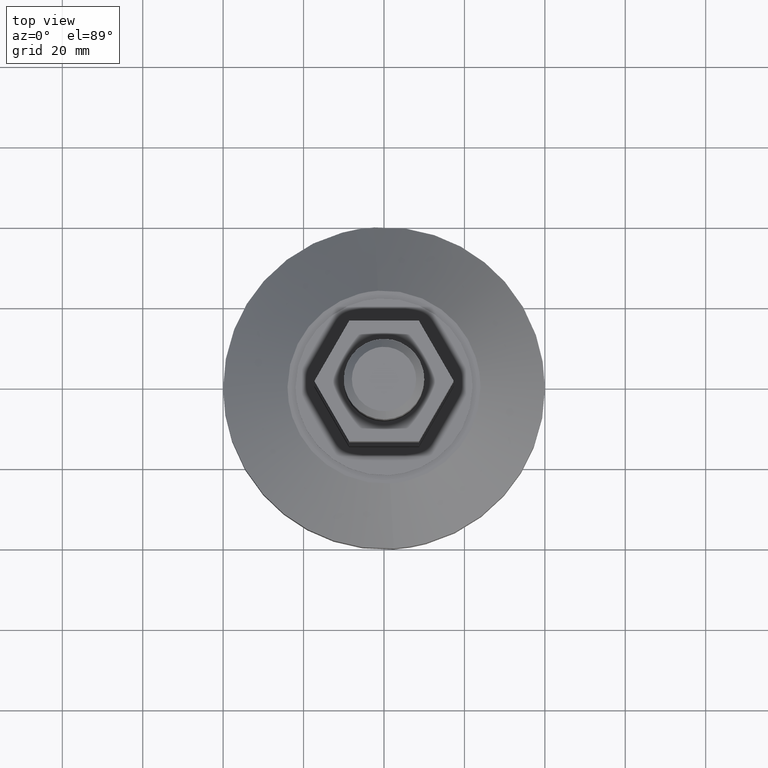
[diagram: clean part render]
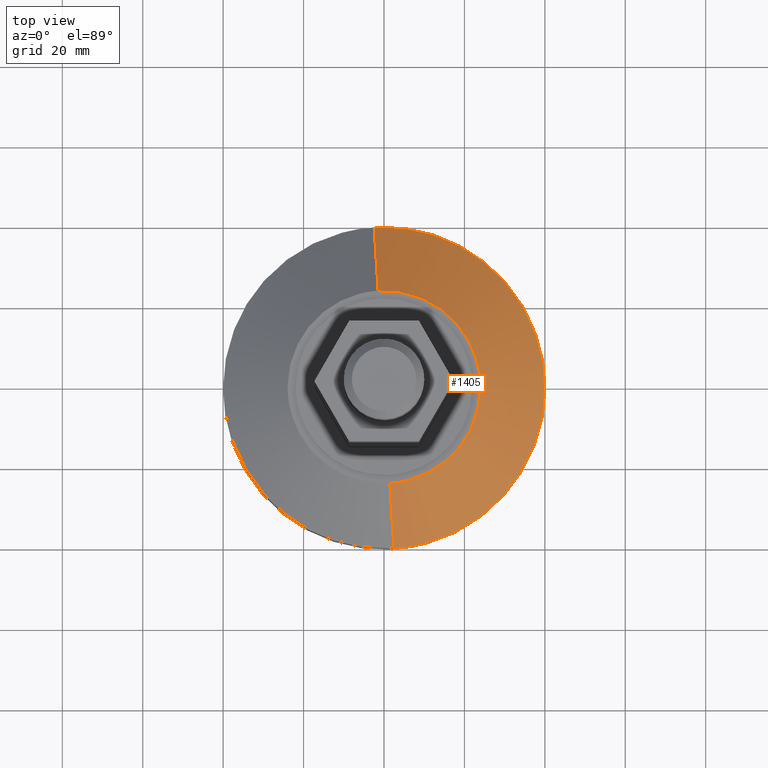
[diagram: same view with one face highlighted and labeled with its STEP entity id]
A machine part, top view. The second image highlights one B-rep face of the part: STEP entity #1405.
In plain terms, the highlighted face is a freeform B-spline surface patch.
Its self-contained STEP definition (entity closure, byte-faithful):
#1235=CARTESIAN_POINT('',(-2.441941581420718,39.925391936876743,14.999999999994490));
#1236=VERTEX_POINT('',#1235);
#1242=CARTESIAN_POINT('',(40.000000000000007,0.0,15.0));
#1243=VERTEX_POINT('',#1242);
#1244=CARTESIAN_POINT('',(-2.441941581420719,39.925391936876736,14.999999999994492));
#1245=CARTESIAN_POINT('',(-1.222110531944214,40.000000000005187,14.999999999994570));
#1246=CARTESIAN_POINT('',(2.524779E-011,40.000000000005109,14.999999999994650));
#1247=CARTESIAN_POINT('',(40.000000000012243,40.000000000002473,14.999999999997407));
#1248=CARTESIAN_POINT('',(40.000000000000007,0.0,15.0));
#1256=(BOUNDED_CURVE()B_SPLINE_CURVE(2,(#1244,#1245,#1246,#1247,#1248),.UNSPECIFIED.,.F.,.U.)B_SPLINE_CURVE_WITH_KNOTS((3,2,3),(0.239332962241742,0.250000000000000,0.500000000000000),.UNSPECIFIED.)CURVE()GEOMETRIC_REPRESENTATION_ITEM()RATIONAL_B_SPLINE_CURVE((0.976072041672716,0.987502787903116,1.0,0.707106781186548,1.0))REPRESENTATION_ITEM(''));
#1257=EDGE_CURVE('',#1236,#1243,#1256,.T.);
#1259=CARTESIAN_POINT('',(2.441941581420751,-39.925391936876743,14.999999999994490));
#1260=VERTEX_POINT('',#1259);
#1261=CARTESIAN_POINT('',(40.000000000000007,0.0,15.0));
#1262=CARTESIAN_POINT('',(39.999999999986997,-37.628242676180889,14.999999999997247));
#1263=CARTESIAN_POINT('',(2.441941581420751,-39.925391936876736,14.999999999994492));
#1271=(BOUNDED_CURVE()B_SPLINE_CURVE(2,(#1261,#1262,#1263),.UNSPECIFIED.,.F.,.U.)B_SPLINE_CURVE_WITH_KNOTS((3,3),(0.500000000000000,0.739332962241742),.UNSPECIFIED.)CURVE()GEOMETRIC_REPRESENTATION_ITEM()RATIONAL_B_SPLINE_CURVE((1.0,0.719603993283431,0.976072041672716))REPRESENTATION_ITEM(''));
#1272=EDGE_CURVE('',#1243,#1260,#1271,.T.);
#1339=CARTESIAN_POINT('',(-1.440745533022588,23.555981242755681,28.324999999999999));
#1340=CARTESIAN_POINT('',(22.115235709733092,24.996726775778285,28.324999999999999));
#1341=CARTESIAN_POINT('',(23.555981242755699,1.440745533022602,28.324999999999999));
#1342=CARTESIAN_POINT('',(24.996726775778299,-22.115235709733078,28.324999999999999));
#1343=CARTESIAN_POINT('',(1.440745533022616,-23.555981242755681,28.324999999999999));
#1344=CARTESIAN_POINT('',(-2.466971482603568,40.334627204227829,14.666874999999999));
#1345=CARTESIAN_POINT('',(37.867655721624253,42.801598686831412,14.666874999999992));
#1346=CARTESIAN_POINT('',(40.334627204227843,2.466971482603583,14.666874999999999));
#1347=CARTESIAN_POINT('',(42.801598686831426,-37.867655721624246,14.666874999999992));
#1348=CARTESIAN_POINT('',(2.466971482603597,-40.334627204227829,14.666874999999999));
#1356=(BOUNDED_SURFACE()B_SPLINE_SURFACE(2,1,((#1339,#1344),(#1340,#1345),(#1341,#1346),(#1342,#1347),(#1343,#1348)),.UNSPECIFIED.,.F.,.F.,.U.)B_SPLINE_SURFACE_WITH_KNOTS((3,2,3),(2,2),(0.0,66.953480221987405,133.906960443974810),(0.0,21.659189239573220),.UNSPECIFIED.)GEOMETRIC_REPRESENTATION_ITEM()RATIONAL_B_SPLINE_SURFACE(((1.0,1.0),(0.707106781186548,0.707106781186548),(1.0,1.0),(0.707106781186548,0.707106781186548),(1.0,1.0)))REPRESENTATION_ITEM('')SURFACE());
#1357=ORIENTED_EDGE('',*,*,#1257,.F.);
#1358=CARTESIAN_POINT('',(-1.465164948888598,23.955235162128471,27.999999999994159));
#1359=VERTEX_POINT('',#1358);
#1360=CARTESIAN_POINT('',(-1.465164948888598,23.955235162128471,27.999999999994159));
#1361=CARTESIAN_POINT('',(-2.441941581447172,39.925391936878803,14.999999999994101));
#1362=QUASI_UNIFORM_CURVE('',1,(#1360,#1361),.UNSPECIFIED.,.F.,.U.);
#1363=EDGE_CURVE('',#1359,#1236,#1362,.T.);
#1364=ORIENTED_EDGE('',*,*,#1363,.F.);
#1365=CARTESIAN_POINT('',(23.999999999999659,0.0,28.0));
#1366=VERTEX_POINT('',#1365);
#1367=CARTESIAN_POINT('',(-1.465164948888598,23.955235162128460,27.999999999994156));
#1368=CARTESIAN_POINT('',(-0.733266319192427,24.000000000006715,27.999999999994241));
#1369=CARTESIAN_POINT('',(-4.108950E-013,24.000000000006612,27.999999999994341));
#1370=CARTESIAN_POINT('',(23.999999999999460,24.000000000003027,27.999999999997254));
#1371=CARTESIAN_POINT('',(23.999999999999659,0.0,28.0));
#1379=(BOUNDED_CURVE()B_SPLINE_CURVE(2,(#1367,#1368,#1369,#1370,#1371),.UNSPECIFIED.,.F.,.U.)B_SPLINE_CURVE_WITH_KNOTS((3,2,3),(0.239332962241596,0.250000000000000,0.500000000000000),.UNSPECIFIED.)CURVE()GEOMETRIC_REPRESENTATION_ITEM()RATIONAL_B_SPLINE_CURVE((0.976072041672405,0.987502787902946,1.0,0.707106781186548,1.0))REPRESENTATION_ITEM(''));
#1380=EDGE_CURVE('',#1359,#1366,#1379,.T.);
#1381=ORIENTED_EDGE('',*,*,#1380,.T.);
#1382=CARTESIAN_POINT('',(1.465164948888622,-23.955235162128471,27.999999999994159));
#1383=VERTEX_POINT('',#1382);
#1384=CARTESIAN_POINT('',(23.999999999999659,0.0,28.0));
#1385=CARTESIAN_POINT('',(23.999999999999886,-22.576945605691197,27.999999999997073));
#1386=CARTESIAN_POINT('',(1.465164948888622,-23.955235162128471,27.999999999994163));
#1394=(BOUNDED_CURVE()B_SPLINE_CURVE(2,(#1384,#1385,#1386),.UNSPECIFIED.,.F.,.U.)B_SPLINE_CURVE_WITH_KNOTS((3,3),(0.500000000000000,0.739332962241597),.UNSPECIFIED.)CURVE()GEOMETRIC_REPRESENTATION_ITEM()RATIONAL_B_SPLINE_CURVE((1.0,0.719603993283601,0.976072041672405))REPRESENTATION_ITEM(''));
#1395=EDGE_CURVE('',#1366,#1383,#1394,.T.);
#1396=ORIENTED_EDGE('',*,*,#1395,.T.);
#1397=CARTESIAN_POINT('',(1.465164948888622,-23.955235162128471,27.999999999994159));
#1398=CARTESIAN_POINT('',(2.441941581447212,-39.925391936878803,14.999999999994101));
#1399=QUASI_UNIFORM_CURVE('',1,(#1397,#1398),.UNSPECIFIED.,.F.,.U.);
#1400=EDGE_CURVE('',#1383,#1260,#1399,.T.);
#1401=ORIENTED_EDGE('',*,*,#1400,.T.);
#1402=ORIENTED_EDGE('',*,*,#1272,.F.);
#1403=EDGE_LOOP('',(#1357,#1364,#1381,#1396,#1401,#1402));
#1404=FACE_OUTER_BOUND('',#1403,.T.);
#1405=ADVANCED_FACE('',(#1404),#1356,.T.);